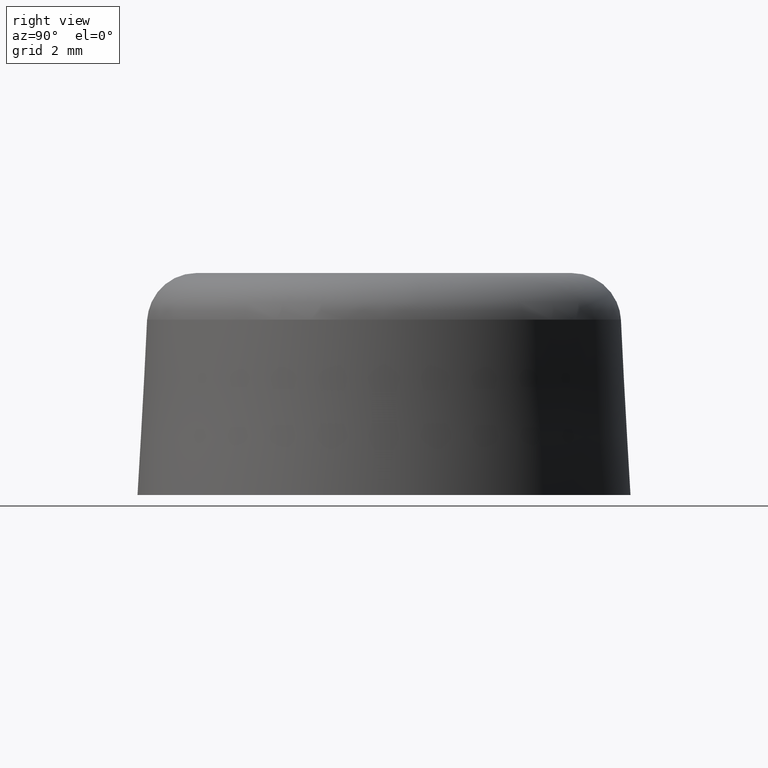
[diagram: clean part render]
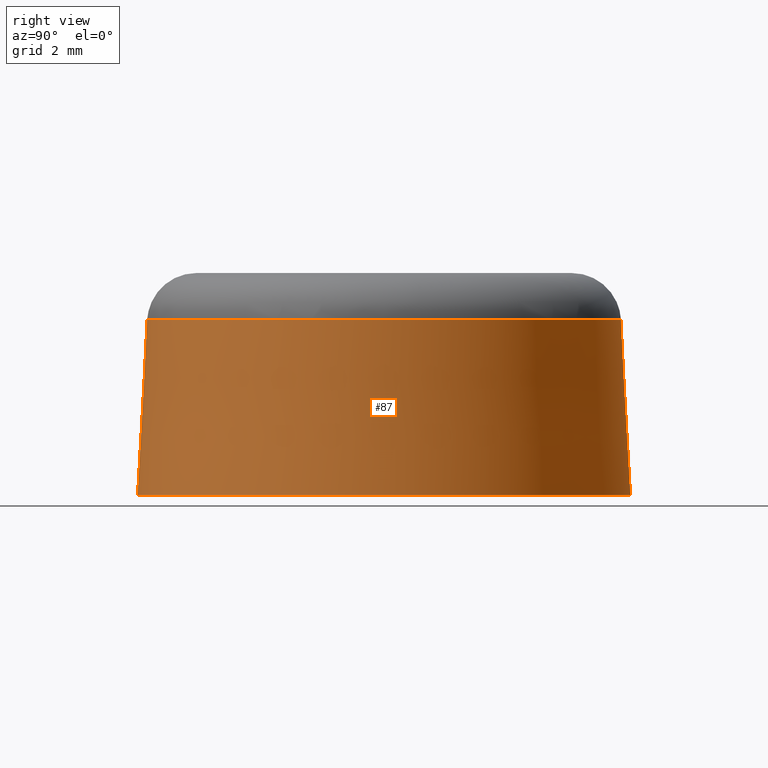
[diagram: same view with one face highlighted and labeled with its STEP entity id]
A machine part, right view. The second image highlights one B-rep face of the part: STEP entity #87.
In plain terms, the highlighted conical surface has half-angle 3.18 deg.
Its self-contained STEP definition (entity closure, byte-faithful):
#17=CONICAL_SURFACE('',#99,5.,3.17983011986423);
#23=FACE_BOUND('',#40,.T.);
#30=FACE_OUTER_BOUND('',#39,.T.);
#39=EDGE_LOOP('',(#74));
#40=EDGE_LOOP('',(#75));
#50=CIRCLE('',#96,4.80247388779875);
#52=CIRCLE('',#100,5.);
#57=VERTEX_POINT('',#142);
#59=VERTEX_POINT('',#148);
#64=EDGE_CURVE('',#57,#57,#50,.T.);
#66=EDGE_CURVE('',#59,#59,#52,.T.);
#74=ORIENTED_EDGE('',*,*,#66,.T.);
#75=ORIENTED_EDGE('',*,*,#64,.F.);
#87=ADVANCED_FACE('',(#30,#23),#17,.T.);
#96=AXIS2_PLACEMENT_3D('',#143,#114,#115);
#99=AXIS2_PLACEMENT_3D('',#147,#120,#121);
#100=AXIS2_PLACEMENT_3D('',#149,#122,#123);
#114=DIRECTION('center_axis',(0.,0.,1.));
#115=DIRECTION('ref_axis',(1.,1.22464679914735E-16,0.));
#120=DIRECTION('center_axis',(0.,0.,-1.));
#121=DIRECTION('ref_axis',(-1.,0.,0.));
#122=DIRECTION('center_axis',(0.,0.,1.));
#123=DIRECTION('ref_axis',(-1.,0.,0.));
#142=CARTESIAN_POINT('',(-4.80247388779875,-1.1762668549363E-15,3.55547001962252));
#143=CARTESIAN_POINT('Origin',(0.,0.,3.55547001962252));
#147=CARTESIAN_POINT('Origin',(0.,0.,0.));
#148=CARTESIAN_POINT('',(-5.,0.,0.));
#149=CARTESIAN_POINT('Origin',(0.,0.,0.));